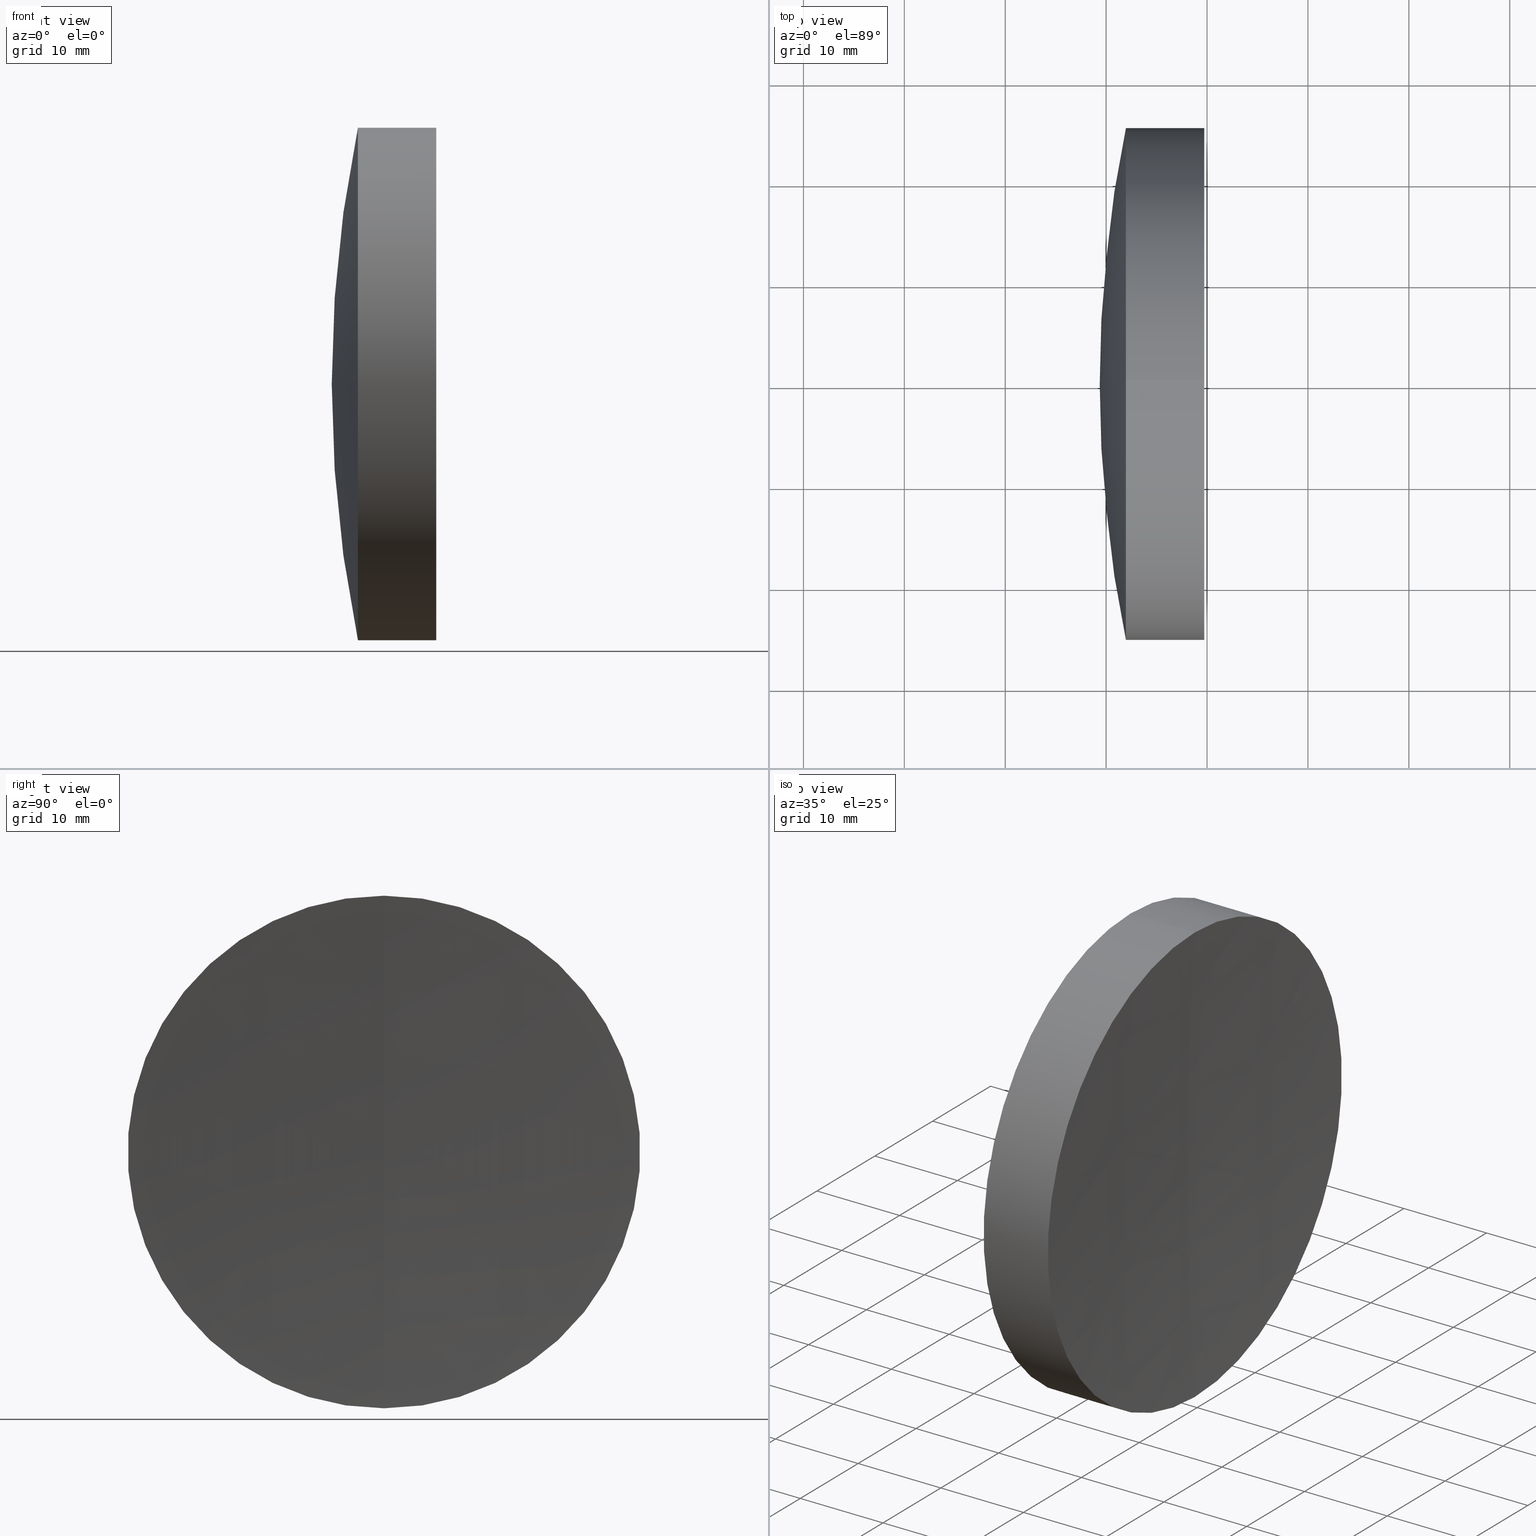
[diagram: canonical four-view strip — front | top / right | iso, engineering-drawing reading convention]
A machine part, canonical four-view strip (front | top / right | iso — engineering-drawing reading convention). The complete STEP part file that produces these views, byte-faithful:
ISO-10303-21;
HEADER;
FILE_DESCRIPTION (( 'STEP AP214' ),
    '1' );
FILE_NAME ('145183.STEP',
    '2019-06-13T02:10:40',
    ( 'user' ),
    ( '΢���й�' ),
    'SwSTEP 2.0',
    'SolidWorks 2016',
    '' );
FILE_SCHEMA (( 'AUTOMOTIVE_DESIGN' ));
ENDSEC;

DATA;
#1 = VERTEX_POINT ( 'NONE', #91 ) ;
#2 = AXIS2_PLACEMENT_3D ( 'NONE', #18, #268, #275 ) ;
#3 = EDGE_CURVE ( 'NONE', #1, #245, #28, .T. ) ;
#4 = ORIENTED_EDGE ( 'NONE', *, *, #334, .T. ) ;
#5 = PRODUCT_DEFINITION_SHAPE ( 'NONE', 'NONE',  #333 ) ;
#6 = ADVANCED_FACE ( 'NONE', ( #19 ), #63, .T. ) ;
#7 = VERTEX_POINT ( 'NONE', #144 ) ;
#8 = CARTESIAN_POINT ( 'NONE',  ( 44.36476896124682400, 0.0000000000000000000, 3.080629158308288600E-014 ) ) ;
#9 = STYLED_ITEM ( 'NONE', ( #330 ), #191 ) ;
#10 = EDGE_CURVE ( 'NONE', #320, #245, #237, .T. ) ;
#11 =( NAMED_UNIT ( * ) SI_UNIT ( $, .STERADIAN. ) SOLID_ANGLE_UNIT ( ) );
#12 = PRESENTATION_LAYER_ASSIGNMENT (  '', '', ( #9 ) ) ;
#13 = DIRECTION ( 'NONE',  ( 0.0000000000000000000, 0.0000000000000000000, 1.000000000000000000 ) ) ;
#14 = DIRECTION ( 'NONE',  ( 0.0000000000000000000, -1.000000000000000000, 0.0000000000000000000 ) ) ;
#15 = EDGE_LOOP ( 'NONE', ( #171, #279, #315 ) ) ;
#16 = DIRECTION ( 'NONE',  ( 0.0000000000000000000, -1.000000000000000000, -1.224646799147353200E-016 ) ) ;
#17 = AXIS2_PLACEMENT_3D ( 'NONE', #41, #253, #246 ) ;
#18 = CARTESIAN_POINT ( 'NONE',  ( -0.8160621761658039000, 0.0000000000000000000, 0.0000000000000000000 ) ) ;
#19 = FACE_OUTER_BOUND ( 'NONE', #71, .T. ) ;
#20 = EDGE_CURVE ( 'NONE', #305, #276, #72, .T. ) ;
#21 = CYLINDRICAL_SURFACE ( 'NONE', #2, 25.40000000000002700 ) ;
#22 = APPLICATION_CONTEXT ( 'automotive_design' ) ;
#23 = EDGE_LOOP ( 'NONE', ( #260, #145, #252, #112 ) ) ;
#24 = SURFACE_STYLE_USAGE ( .BOTH. , #247 ) ;
#25 = EDGE_LOOP ( 'NONE', ( #52, #337, #224 ) ) ;
#26 = DIRECTION ( 'NONE',  ( 0.0000000000000000000, 1.224646799147353000E-016, -1.000000000000000000 ) ) ;
#27 = CARTESIAN_POINT ( 'NONE',  ( -0.5519199926577972300, 0.0000000000000000000, 0.0000000000000000000 ) ) ;
#28 = CIRCLE ( 'NONE', #168, 161.5000000000000000 ) ;
#29 = DIRECTION ( 'NONE',  ( 0.0000000000000000000, -1.000000000000000000, -1.224646799147353200E-016 ) ) ;
#30 = AXIS2_PLACEMENT_3D ( 'NONE', #27, #250, #140 ) ;
#31 = EDGE_CURVE ( 'NONE', #1, #320, #167, .T. ) ;
#32 = DIRECTION ( 'NONE',  ( -1.000000000000000000, -0.0000000000000000000, -0.0000000000000000000 ) ) ;
#33 = EDGE_CURVE ( 'NONE', #60, #251, #267, .T. ) ;
#34 = ORIENTED_EDGE ( 'NONE', *, *, #50, .T. ) ;
#35 = DIRECTION ( 'NONE',  ( 0.0000000000000000000, 0.0000000000000000000, 1.000000000000000000 ) ) ;
#36 = ORIENTED_EDGE ( 'NONE', *, *, #261, .T. ) ;
#37 = DIRECTION ( 'NONE',  ( 0.0000000000000000000, 0.0000000000000000000, -1.000000000000000000 ) ) ;
#38 = VECTOR ( 'NONE', #32, 1000.000000000000000 ) ;
#39 = DIRECTION ( 'NONE',  ( 0.0000000000000000000, 0.0000000000000000000, 1.000000000000000000 ) ) ;
#40 = CARTESIAN_POINT ( 'NONE',  ( 203.8548626975037100, 0.0000000000000000000, 0.0000000000000000000 ) ) ;
#41 = CARTESIAN_POINT ( 'NONE',  ( 324.9647689612468200, 0.0000000000000000000, 2.974097145224427900E-014 ) ) ;
#42 = EDGE_CURVE ( 'NONE', #251, #60, #295, .T. ) ;
#43 = PRODUCT_CONTEXT ( 'NONE', #291, 'mechanical' ) ;
#44 = CARTESIAN_POINT ( 'NONE',  ( 203.8548626975037100, 3.110602869834281200E-015, -25.40000000000003400 ) ) ;
#45 = VERTEX_POINT ( 'NONE', #99 ) ;
#46 = CARTESIAN_POINT ( 'NONE',  ( -0.8160621761658039000, 0.0000000000000000000, 0.0000000000000000000 ) ) ;
#47 = AXIS2_PLACEMENT_3D ( 'NONE', #101, #238, #129 ) ;
#48 = SPHERICAL_SURFACE ( 'NONE', #90, 125.6000000000000200 ) ;
#49 = DIRECTION ( 'NONE',  ( 0.0000000000000000000, -1.000000000000000000, -1.224646799147353200E-016 ) ) ;
#50 = EDGE_CURVE ( 'NONE', #7, #251, #271, .T. ) ;
#51 = CARTESIAN_POINT ( 'NONE',  ( 201.9598910091916100, 0.0000000000000000000, 0.0000000000000000000 ) ) ;
#52 = ORIENTED_EDGE ( 'NONE', *, *, #270, .F. ) ;
#53 =( GEOMETRIC_REPRESENTATION_CONTEXT ( 3 ) GLOBAL_UNCERTAINTY_ASSIGNED_CONTEXT ( ( #199 ) ) GLOBAL_UNIT_ASSIGNED_CONTEXT ( ( #100, #210, #222 ) ) REPRESENTATION_CONTEXT ( 'NONE', 'WORKASPACE' ) );
#54 = ORIENTED_EDGE ( 'NONE', *, *, #110, .F. ) ;
#55 = EDGE_CURVE ( 'NONE', #328, #304, #243, .T. ) ;
#56 = FACE_OUTER_BOUND ( 'NONE', #86, .T. ) ;
#57 = CARTESIAN_POINT ( 'NONE',  ( -0.8160621761658039000, 3.110602869834280400E-015, -25.40000000000002700 ) ) ;
#58 = CARTESIAN_POINT ( 'NONE',  ( 209.7231034970280100, 0.0000000000000000000, -25.40000000000006300 ) ) ;
#59 = AXIS2_PLACEMENT_3D ( 'NONE', #283, #76, #347 ) ;
#60 = VERTEX_POINT ( 'NONE', #96 ) ;
#61 = CARTESIAN_POINT ( 'NONE',  ( 44.36476896124682400, 0.0000000000000000000, 3.080629158308288600E-014 ) ) ;
#62 = MANIFOLD_SOLID_BREP ( '��ת2', #104 ) ;
#63 = CYLINDRICAL_SURFACE ( 'NONE', #67, 25.40000000000001300 ) ;
#64 = ADVANCED_FACE ( 'NONE', ( #299 ), #280, .T. ) ;
#65 = UNCERTAINTY_MEASURE_WITH_UNIT (LENGTH_MEASURE( 1.000000000000000100E-005 ), #121, 'distance_accuracy_value', 'NONE');
#66 = EDGE_LOOP ( 'NONE', ( #266, #36, #190 ) ) ;
#67 = AXIS2_PLACEMENT_3D ( 'NONE', #206, #278, #39 ) ;
#68 = SURFACE_STYLE_USAGE ( .BOTH. , #296 ) ;
#69 = DIRECTION ( 'NONE',  ( 0.0000000000000000000, 0.0000000000000000000, 1.000000000000000000 ) ) ;
#70 = CARTESIAN_POINT ( 'NONE',  ( 585.1147689612468000, 0.0000000000000000000, 0.0000000000000000000 ) ) ;
#71 = EDGE_LOOP ( 'NONE', ( #85, #148, #83, #233 ) ) ;
#72 = CIRCLE ( 'NONE', #153, 25.40000000000001300 ) ;
#73 = DIRECTION ( 'NONE',  ( 0.0000000000000000000, 1.000000000000000000, -0.0000000000000000000 ) ) ;
#74 = AXIS2_PLACEMENT_3D ( 'NONE', #124, #301, #150 ) ;
#75 = ORIENTED_EDGE ( 'NONE', *, *, #3, .F. ) ;
#76 = DIRECTION ( 'NONE',  ( -1.000000000000000000, -0.0000000000000000000, -0.0000000000000000000 ) ) ;
#77 = SPHERICAL_SURFACE ( 'NONE', #155, 161.5000000000000000 ) ;
#78 = CIRCLE ( 'NONE', #221, 376.2500000000000000 ) ;
#79 = PRESENTATION_LAYER_ASSIGNMENT (  '', '', ( #131 ) ) ;
#80 = PRESENTATION_STYLE_ASSIGNMENT (( #24 ) ) ;
#81 = EDGE_CURVE ( 'NONE', #276, #251, #229, .T. ) ;
#82 = CIRCLE ( 'NONE', #231, 125.6000000000000200 ) ;
#83 = ORIENTED_EDGE ( 'NONE', *, *, #81, .T. ) ;
#84 = APPLICATION_PROTOCOL_DEFINITION ( 'draft international standard', 'automotive_design', 1998, #291 ) ;
#85 = ORIENTED_EDGE ( 'NONE', *, *, #342, .F. ) ;
#86 = EDGE_LOOP ( 'NONE', ( #290, #34, #298 ) ) ;
#87 = CARTESIAN_POINT ( 'NONE',  ( 585.1147689612468000, 0.0000000000000000000, 0.0000000000000000000 ) ) ;
#88 = CIRCLE ( 'NONE', #209, 25.40000000000001300 ) ;
#89 = DIRECTION ( 'NONE',  ( -1.000000000000000000, -0.0000000000000000000, -0.0000000000000000000 ) ) ;
#90 = AXIS2_PLACEMENT_3D ( 'NONE', #313, #339, #37 ) ;
#91 = CARTESIAN_POINT ( 'NONE',  ( 205.8647689612468200, 0.0000000000000000000, 4.069531448619776800E-014 ) ) ;
#92 = PRODUCT_DEFINITION_CONTEXT ( 'detailed design', #22, 'design' ) ;
#93 = ORIENTED_EDGE ( 'NONE', *, *, #81, .F. ) ;
#94 = EDGE_LOOP ( 'NONE', ( #226, #257, #241 ) ) ;
#95 =( GEOMETRIC_REPRESENTATION_CONTEXT ( 3 ) GLOBAL_UNCERTAINTY_ASSIGNED_CONTEXT ( ( #205 ) ) GLOBAL_UNIT_ASSIGNED_CONTEXT ( ( #341, #175, #11 ) ) REPRESENTATION_CONTEXT ( 'NONE', 'WORKASPACE' ) );
#96 = CARTESIAN_POINT ( 'NONE',  ( 203.8548626975037100, 0.0000000000000000000, -25.40000000000001300 ) ) ;
#97 = MECHANICAL_DESIGN_GEOMETRIC_PRESENTATION_REPRESENTATION (  '', ( #9 ), #322 ) ;
#98 = CARTESIAN_POINT ( 'NONE',  ( -0.5519199926577972300, 3.110602869834278400E-015, -25.40000000000001300 ) ) ;
#99 = CARTESIAN_POINT ( 'NONE',  ( 199.3647689612468000, 0.0000000000000000000, 2.205018955359889700E-014 ) ) ;
#100 =( LENGTH_UNIT ( ) NAMED_UNIT ( * ) SI_UNIT ( .MILLI., .METRE. ) );
#101 = CARTESIAN_POINT ( 'NONE',  ( 585.1147689612468000, 0.0000000000000000000, 0.0000000000000000000 ) ) ;
#102 = FACE_OUTER_BOUND ( 'NONE', #201, .T. ) ;
#103 = MECHANICAL_DESIGN_GEOMETRIC_PRESENTATION_REPRESENTATION (  '', ( #131 ), #95 ) ;
#104 = CLOSED_SHELL ( 'NONE', ( #331, #336, #108, #239, #195, #6 ) ) ;
#105 = CARTESIAN_POINT ( 'NONE',  ( 209.7231034970280100, -3.110602869834284800E-015, 25.40000000000006300 ) ) ;
#106 = COLOUR_RGB ( '',1.000000000000000000, 1.000000000000000000, 1.000000000000000000 ) ;
#107 = CARTESIAN_POINT ( 'NONE',  ( 203.8548626975037100, 0.0000000000000000000, 0.0000000000000000000 ) ) ;
#108 = ADVANCED_FACE ( 'NONE', ( #56 ), #218, .F. ) ;
#109 = AXIS2_PLACEMENT_3D ( 'NONE', #46, #314, #35 ) ;
#110 = EDGE_CURVE ( 'NONE', #276, #305, #88, .T. ) ;
#111 = LINE ( 'NONE', #98, #38 ) ;
#112 = ORIENTED_EDGE ( 'NONE', *, *, #126, .F. ) ;
#113 = DIRECTION ( 'NONE',  ( 0.0000000000000000000, 1.000000000000000000, 0.0000000000000000000 ) ) ;
#114 = DIRECTION ( 'NONE',  ( 0.0000000000000000000, 1.000000000000000000, 0.0000000000000000000 ) ) ;
#115 = SURFACE_STYLE_FILL_AREA ( #183 ) ;
#116 = AXIS2_PLACEMENT_3D ( 'NONE', #107, #181, #236 ) ;
#117 = CARTESIAN_POINT ( 'NONE',  ( 209.7231034970280100, 0.0000000000000000000, 0.0000000000000000000 ) ) ;
#118 = ADVANCED_FACE ( 'NONE', ( #346 ), #48, .T. ) ;
#119 = SURFACE_STYLE_FILL_AREA ( #132 ) ;
#120 = ORIENTED_EDGE ( 'NONE', *, *, #342, .T. ) ;
#121 =( LENGTH_UNIT ( ) NAMED_UNIT ( * ) SI_UNIT ( .MILLI., .METRE. ) );
#122 = ORIENTED_EDGE ( 'NONE', *, *, #110, .T. ) ;
#123 = AXIS2_PLACEMENT_3D ( 'NONE', #40, #89, #258 ) ;
#124 = CARTESIAN_POINT ( 'NONE',  ( 44.36476896124682400, 0.0000000000000000000, 3.080629158308288600E-014 ) ) ;
#125 = MANIFOLD_SOLID_BREP ( '��ת1', #176 ) ;
#126 = EDGE_CURVE ( 'NONE', #245, #304, #208, .T. ) ;
#127 = CARTESIAN_POINT ( 'NONE',  ( 203.8548626975037100, 0.0000000000000000000, 25.40000000000003100 ) ) ;
#128 = DIRECTION ( 'NONE',  ( 0.0000000000000000000, -1.224646799147353200E-016, 1.000000000000000000 ) ) ;
#129 = DIRECTION ( 'NONE',  ( 0.0000000000000000000, 0.0000000000000000000, -1.000000000000000000 ) ) ;
#130 = CIRCLE ( 'NONE', #123, 25.40000000000003100 ) ;
#131 = STYLED_ITEM ( 'NONE', ( #284 ), #125 ) ;
#132 = FILL_AREA_STYLE ('',( #151 ) ) ;
#133 = DIRECTION ( 'NONE',  ( -1.000000000000000000, -0.0000000000000000000, -0.0000000000000000000 ) ) ;
#134 = DIRECTION ( 'NONE',  ( 0.0000000000000000000, 1.224646799147353500E-016, -1.000000000000000000 ) ) ;
#135 = AXIS2_PLACEMENT_3D ( 'NONE', #303, #228, #13 ) ;
#136 = FACE_OUTER_BOUND ( 'NONE', #23, .T. ) ;
#137 = FACE_OUTER_BOUND ( 'NONE', #321, .T. ) ;
#138 = CARTESIAN_POINT ( 'NONE',  ( 201.9598910091916100, -3.110602869834281600E-015, 25.40000000000007000 ) ) ;
#139 = ORIENTED_EDGE ( 'NONE', *, *, #42, .F. ) ;
#140 = DIRECTION ( 'NONE',  ( 0.0000000000000000000, 0.0000000000000000000, 1.000000000000000000 ) ) ;
#141 = AXIS2_PLACEMENT_3D ( 'NONE', #61, #286, #162 ) ;
#142 = LINE ( 'NONE', #57, #154 ) ;
#143 = DIRECTION ( 'NONE',  ( -1.000000000000000000, -0.0000000000000000000, -0.0000000000000000000 ) ) ;
#144 = CARTESIAN_POINT ( 'NONE',  ( 205.8647689612468500, 0.0000000000000000000, 2.091726867996800700E-014 ) ) ;
#145 = ORIENTED_EDGE ( 'NONE', *, *, #161, .T. ) ;
#146 = CARTESIAN_POINT ( 'NONE',  ( 44.36476896124682400, 0.0000000000000000000, 3.080629158308288600E-014 ) ) ;
#147 = ADVANCED_FACE ( 'NONE', ( #136 ), #340, .T. ) ;
#148 = ORIENTED_EDGE ( 'NONE', *, *, #20, .T. ) ;
#149 = AXIS2_PLACEMENT_3D ( 'NONE', #70, #174, #285 ) ;
#150 = DIRECTION ( 'NONE',  ( 0.0000000000000000000, 0.0000000000000000000, -1.000000000000000000 ) ) ;
#151 = FILL_AREA_STYLE_COLOUR ( '', #256 ) ;
#152 = DIRECTION ( 'NONE',  ( -1.000000000000000000, -0.0000000000000000000, -0.0000000000000000000 ) ) ;
#153 = AXIS2_PLACEMENT_3D ( 'NONE', #117, #143, #207 ) ;
#154 = VECTOR ( 'NONE', #282, 1000.000000000000000 ) ;
#155 = AXIS2_PLACEMENT_3D ( 'NONE', #8, #113, #202 ) ;
#156 = ORIENTED_EDGE ( 'NONE', *, *, #261, .F. ) ;
#157 = DIRECTION ( 'NONE',  ( 0.0000000000000000000, 0.0000000000000000000, 1.000000000000000000 ) ) ;
#158 = COLOUR_RGB ( '',1.000000000000000000, 1.000000000000000000, 1.000000000000000000 ) ;
#159 = FILL_AREA_STYLE ('',( #312 ) ) ;
#160 = PRESENTATION_LAYER_ASSIGNMENT (  '', '', ( #186 ) ) ;
#161 = EDGE_CURVE ( 'NONE', #320, #328, #142, .T. ) ;
#162 = DIRECTION ( 'NONE',  ( 0.0000000000000000000, 0.0000000000000000000, 1.000000000000000000 ) ) ;
#163 = DIRECTION ( 'NONE',  ( 0.0000000000000000000, 0.0000000000000000000, 1.000000000000000000 ) ) ;
#164 = SPHERICAL_SURFACE ( 'NONE', #47, 376.2500000000000000 ) ;
#165 =( LENGTH_UNIT ( ) NAMED_UNIT ( * ) SI_UNIT ( .MILLI., .METRE. ) );
#166 = AXIS2_PLACEMENT_3D ( 'NONE', #338, #49, #134 ) ;
#167 = CIRCLE ( 'NONE', #203, 161.5000000000000000 ) ;
#168 = AXIS2_PLACEMENT_3D ( 'NONE', #146, #14, #169 ) ;
#169 = DIRECTION ( 'NONE',  ( 0.0000000000000000000, 0.0000000000000000000, -1.000000000000000000 ) ) ;
#170 = AXIS2_PLACEMENT_3D ( 'NONE', #51, #220, #180 ) ;
#171 = ORIENTED_EDGE ( 'NONE', *, *, #50, .F. ) ;
#172 = ORIENTED_EDGE ( 'NONE', *, *, #270, .T. ) ;
#173 = CARTESIAN_POINT ( 'NONE',  ( 209.7231034970280100, 0.0000000000000000000, 0.0000000000000000000 ) ) ;
#174 = DIRECTION ( 'NONE',  ( -0.0000000000000000000, -1.000000000000000000, -0.0000000000000000000 ) ) ;
#175 =( NAMED_UNIT ( * ) PLANE_ANGLE_UNIT ( ) SI_UNIT ( $, .RADIAN. ) );
#176 = CLOSED_SHELL ( 'NONE', ( #235, #147, #118, #343, #230, #64 ) ) ;
#177 =( GEOMETRIC_REPRESENTATION_CONTEXT ( 3 ) GLOBAL_UNCERTAINTY_ASSIGNED_CONTEXT ( ( #318 ) ) GLOBAL_UNIT_ASSIGNED_CONTEXT ( ( #165, #244, #277 ) ) REPRESENTATION_CONTEXT ( 'NONE', 'WORKASPACE' ) );
#178 = EDGE_LOOP ( 'NONE', ( #310, #287, #216, #211 ) ) ;
#179 = CARTESIAN_POINT ( 'NONE',  ( -0.5519199926577972300, 0.0000000000000000000, 25.40000000000001300 ) ) ;
#180 = DIRECTION ( 'NONE',  ( 0.0000000000000000000, 0.0000000000000000000, 1.000000000000000000 ) ) ;
#181 = DIRECTION ( 'NONE',  ( -1.000000000000000000, -0.0000000000000000000, -0.0000000000000000000 ) ) ;
#182 = CARTESIAN_POINT ( 'NONE',  ( 203.8548626975037100, -3.110602869834278400E-015, 25.40000000000004100 ) ) ;
#183 = FILL_AREA_STYLE ('',( #311 ) ) ;
#184 = DIRECTION ( 'NONE',  ( -0.0000000000000000000, 1.000000000000000000, 1.224646799147353200E-016 ) ) ;
#185 =( NAMED_UNIT ( * ) PLANE_ANGLE_UNIT ( ) SI_UNIT ( $, .RADIAN. ) );
#186 = STYLED_ITEM ( 'NONE', ( #80 ), #62 ) ;
#187 = EDGE_CURVE ( 'NONE', #7, #60, #307, .T. ) ;
#188 = CARTESIAN_POINT ( 'NONE',  ( 324.9647689612468200, 0.0000000000000000000, 2.974097145224427900E-014 ) ) ;
#189 = ORIENTED_EDGE ( 'NONE', *, *, #198, .F. ) ;
#190 = ORIENTED_EDGE ( 'NONE', *, *, #323, .F. ) ;
#191 = ADVANCED_BREP_SHAPE_REPRESENTATION ( '145183', ( #125, #62, #302 ), #53 ) ;
#192 = DIRECTION ( 'NONE',  ( 0.0000000000000000000, 0.0000000000000000000, -1.000000000000000000 ) ) ;
#193 = AXIS2_PLACEMENT_3D ( 'NONE', #288, #152, #306 ) ;
#194 = SPHERICAL_SURFACE ( 'NONE', #17, 125.6000000000000200 ) ;
#195 = ADVANCED_FACE ( 'NONE', ( #254 ), #332, .F. ) ;
#196 = CARTESIAN_POINT ( 'NONE',  ( 585.1147689612468000, 0.0000000000000000000, 0.0000000000000000000 ) ) ;
#197 = MECHANICAL_DESIGN_GEOMETRIC_PRESENTATION_REPRESENTATION (  '', ( #186 ), #177 ) ;
#198 = EDGE_CURVE ( 'NONE', #245, #320, #130, .T. ) ;
#199 = UNCERTAINTY_MEASURE_WITH_UNIT (LENGTH_MEASURE( 1.000000000000000100E-005 ), #100, 'distance_accuracy_value', 'NONE');
#200 = FACE_OUTER_BOUND ( 'NONE', #327, .T. ) ;
#201 = EDGE_LOOP ( 'NONE', ( #75, #309, #189 ) ) ;
#202 = DIRECTION ( 'NONE',  ( 0.0000000000000000000, 0.0000000000000000000, 1.000000000000000000 ) ) ;
#203 = AXIS2_PLACEMENT_3D ( 'NONE', #345, #184, #128 ) ;
#204 = VECTOR ( 'NONE', #264, 1000.000000000000000 ) ;
#205 = UNCERTAINTY_MEASURE_WITH_UNIT (LENGTH_MEASURE( 1.000000000000000100E-005 ), #341, 'distance_accuracy_value', 'NONE');
#206 = CARTESIAN_POINT ( 'NONE',  ( -0.5519199926577972300, 0.0000000000000000000, 0.0000000000000000000 ) ) ;
#207 = DIRECTION ( 'NONE',  ( 0.0000000000000000000, 0.0000000000000000000, 1.000000000000000000 ) ) ;
#208 = LINE ( 'NONE', #272, #248 ) ;
#209 = AXIS2_PLACEMENT_3D ( 'NONE', #173, #133, #319 ) ;
#210 =( NAMED_UNIT ( * ) PLANE_ANGLE_UNIT ( ) SI_UNIT ( $, .RADIAN. ) );
#211 = ORIENTED_EDGE ( 'NONE', *, *, #55, .F. ) ;
#212 = DIRECTION ( 'NONE',  ( 1.000000000000000000, 0.0000000000000000000, 0.0000000000000000000 ) ) ;
#213 = CARTESIAN_POINT ( 'NONE',  ( 201.9598910091916100, 0.0000000000000000000, -25.40000000000003800 ) ) ;
#214 = DIRECTION ( 'NONE',  ( -0.0000000000000000000, -1.000000000000000000, -0.0000000000000000000 ) ) ;
#215 = AXIS2_PLACEMENT_3D ( 'NONE', #259, #289, #163 ) ;
#216 = ORIENTED_EDGE ( 'NONE', *, *, #126, .T. ) ;
#217 = CARTESIAN_POINT ( 'NONE',  ( 44.36476896124682400, 0.0000000000000000000, 3.080629158308288600E-014 ) ) ;
#218 = SPHERICAL_SURFACE ( 'NONE', #74, 161.5000000000000300 ) ;
#219 = PRODUCT ( '145183', '145183', '', ( #43 ) ) ;
#220 = DIRECTION ( 'NONE',  ( -1.000000000000000000, -0.0000000000000000000, -0.0000000000000000000 ) ) ;
#221 = AXIS2_PLACEMENT_3D ( 'NONE', #196, #73, #265 ) ;
#222 =( NAMED_UNIT ( * ) SI_UNIT ( $, .STERADIAN. ) SOLID_ANGLE_UNIT ( ) );
#223 = CIRCLE ( 'NONE', #215, 125.6000000000000200 ) ;
#224 = ORIENTED_EDGE ( 'NONE', *, *, #308, .T. ) ;
#225 = PRODUCT_DEFINITION_FORMATION_WITH_SPECIFIED_SOURCE ( '�κ�', '', #219, .NOT_KNOWN. ) ;
#226 = ORIENTED_EDGE ( 'NONE', *, *, #31, .F. ) ;
#227 = AXIS2_PLACEMENT_3D ( 'NONE', #335, #114, #69 ) ;
#228 = DIRECTION ( 'NONE',  ( -1.000000000000000000, -0.0000000000000000000, -0.0000000000000000000 ) ) ;
#229 = LINE ( 'NONE', #179, #204 ) ;
#230 = ADVANCED_FACE ( 'NONE', ( #262 ), #21, .T. ) ;
#231 = AXIS2_PLACEMENT_3D ( 'NONE', #188, #29, #26 ) ;
#232 = SPHERICAL_SURFACE ( 'NONE', #240, 161.5000000000000300 ) ;
#233 = ORIENTED_EDGE ( 'NONE', *, *, #33, .F. ) ;
#234 = APPLICATION_PROTOCOL_DEFINITION ( 'draft international standard', 'automotive_design', 1998, #22 ) ;
#235 = ADVANCED_FACE ( 'NONE', ( #102 ), #77, .T. ) ;
#236 = DIRECTION ( 'NONE',  ( 0.0000000000000000000, 0.0000000000000000000, 1.000000000000000000 ) ) ;
#237 = CIRCLE ( 'NONE', #135, 25.40000000000003100 ) ;
#238 = DIRECTION ( 'NONE',  ( -0.0000000000000000000, -1.000000000000000000, -0.0000000000000000000 ) ) ;
#239 = ADVANCED_FACE ( 'NONE', ( #300 ), #232, .F. ) ;
#240 = AXIS2_PLACEMENT_3D ( 'NONE', #217, #214, #192 ) ;
#241 = ORIENTED_EDGE ( 'NONE', *, *, #10, .F. ) ;
#242 = CARTESIAN_POINT ( 'NONE',  ( 0.0000000000000000000, 0.0000000000000000000, 0.0000000000000000000 ) ) ;
#243 = CIRCLE ( 'NONE', #170, 25.40000000000002700 ) ;
#244 =( NAMED_UNIT ( * ) PLANE_ANGLE_UNIT ( ) SI_UNIT ( $, .RADIAN. ) );
#245 = VERTEX_POINT ( 'NONE', #127 ) ;
#246 = DIRECTION ( 'NONE',  ( 0.0000000000000000000, 0.0000000000000000000, -1.000000000000000000 ) ) ;
#247 = SURFACE_SIDE_STYLE ('',( #329 ) ) ;
#248 = VECTOR ( 'NONE', #325, 1000.000000000000000 ) ;
#249 = CIRCLE ( 'NONE', #59, 25.40000000000002700 ) ;
#250 = DIRECTION ( 'NONE',  ( -1.000000000000000000, -0.0000000000000000000, -0.0000000000000000000 ) ) ;
#251 = VERTEX_POINT ( 'NONE', #182 ) ;
#252 = ORIENTED_EDGE ( 'NONE', *, *, #334, .F. ) ;
#253 = DIRECTION ( 'NONE',  ( -0.0000000000000000000, -1.000000000000000000, -0.0000000000000000000 ) ) ;
#254 = FACE_OUTER_BOUND ( 'NONE', #25, .T. ) ;
#255 = SHAPE_DEFINITION_REPRESENTATION ( #5, #191 ) ;
#256 = COLOUR_RGB ( '',1.000000000000000000, 1.000000000000000000, 1.000000000000000000 ) ;
#257 = ORIENTED_EDGE ( 'NONE', *, *, #3, .T. ) ;
#258 = DIRECTION ( 'NONE',  ( 0.0000000000000000000, 0.0000000000000000000, 1.000000000000000000 ) ) ;
#259 = CARTESIAN_POINT ( 'NONE',  ( 324.9647689612468200, 0.0000000000000000000, 2.974097145224427900E-014 ) ) ;
#260 = ORIENTED_EDGE ( 'NONE', *, *, #198, .T. ) ;
#261 = EDGE_CURVE ( 'NONE', #304, #45, #82, .T. ) ;
#262 = FACE_OUTER_BOUND ( 'NONE', #178, .T. ) ;
#263 = FACE_OUTER_BOUND ( 'NONE', #292, .T. ) ;
#264 = DIRECTION ( 'NONE',  ( -1.000000000000000000, -0.0000000000000000000, -0.0000000000000000000 ) ) ;
#265 = DIRECTION ( 'NONE',  ( 0.0000000000000000000, 0.0000000000000000000, 1.000000000000000000 ) ) ;
#266 = ORIENTED_EDGE ( 'NONE', *, *, #55, .T. ) ;
#267 = CIRCLE ( 'NONE', #116, 25.40000000000001300 ) ;
#268 = DIRECTION ( 'NONE',  ( -1.000000000000000000, -0.0000000000000000000, -0.0000000000000000000 ) ) ;
#269 = CARTESIAN_POINT ( 'NONE',  ( 208.8647689612468500, 0.0000000000000000000, -2.303866790895958100E-014 ) ) ;
#270 = EDGE_CURVE ( 'NONE', #276, #297, #344, .T. ) ;
#271 = CIRCLE ( 'NONE', #166, 161.5000000000000300 ) ;
#272 = CARTESIAN_POINT ( 'NONE',  ( -0.8160621761658039000, 0.0000000000000000000, 25.40000000000002700 ) ) ;
#273 = ORIENTED_EDGE ( 'NONE', *, *, #323, .T. ) ;
#274 = SURFACE_SIDE_STYLE ('',( #115 ) ) ;
#275 = DIRECTION ( 'NONE',  ( 0.0000000000000000000, 0.0000000000000000000, 1.000000000000000000 ) ) ;
#276 = VERTEX_POINT ( 'NONE', #105 ) ;
#277 =( NAMED_UNIT ( * ) SI_UNIT ( $, .STERADIAN. ) SOLID_ANGLE_UNIT ( ) );
#278 = DIRECTION ( 'NONE',  ( -1.000000000000000000, -0.0000000000000000000, -0.0000000000000000000 ) ) ;
#279 = ORIENTED_EDGE ( 'NONE', *, *, #187, .T. ) ;
#280 = SPHERICAL_SURFACE ( 'NONE', #227, 161.5000000000000000 ) ;
#281 = ORIENTED_EDGE ( 'NONE', *, *, #308, .F. ) ;
#282 = DIRECTION ( 'NONE',  ( -1.000000000000000000, -0.0000000000000000000, -0.0000000000000000000 ) ) ;
#283 = CARTESIAN_POINT ( 'NONE',  ( 201.9598910091916100, 0.0000000000000000000, 0.0000000000000000000 ) ) ;
#284 = PRESENTATION_STYLE_ASSIGNMENT (( #324 ) ) ;
#285 = DIRECTION ( 'NONE',  ( 0.0000000000000000000, 0.0000000000000000000, -1.000000000000000000 ) ) ;
#286 = DIRECTION ( 'NONE',  ( 0.0000000000000000000, 1.000000000000000000, -0.0000000000000000000 ) ) ;
#287 = ORIENTED_EDGE ( 'NONE', *, *, #10, .T. ) ;
#288 = CARTESIAN_POINT ( 'NONE',  ( 203.8548626975037100, 0.0000000000000000000, 0.0000000000000000000 ) ) ;
#289 = DIRECTION ( 'NONE',  ( 0.0000000000000000000, 1.000000000000000000, -0.0000000000000000000 ) ) ;
#290 = ORIENTED_EDGE ( 'NONE', *, *, #187, .F. ) ;
#291 = APPLICATION_CONTEXT ( 'automotive_design' ) ;
#292 = EDGE_LOOP ( 'NONE', ( #122, #120, #139, #93 ) ) ;
#293 = CYLINDRICAL_SURFACE ( 'NONE', #30, 25.40000000000001300 ) ;
#294 =( NAMED_UNIT ( * ) SI_UNIT ( $, .STERADIAN. ) SOLID_ANGLE_UNIT ( ) );
#295 = CIRCLE ( 'NONE', #193, 25.40000000000001300 ) ;
#296 = SURFACE_SIDE_STYLE ('',( #119 ) ) ;
#297 = VERTEX_POINT ( 'NONE', #269 ) ;
#298 = ORIENTED_EDGE ( 'NONE', *, *, #42, .T. ) ;
#299 = FACE_OUTER_BOUND ( 'NONE', #94, .T. ) ;
#300 = FACE_OUTER_BOUND ( 'NONE', #15, .T. ) ;
#301 = DIRECTION ( 'NONE',  ( -0.0000000000000000000, -1.000000000000000000, -0.0000000000000000000 ) ) ;
#302 = AXIS2_PLACEMENT_3D ( 'NONE', #242, #157, #212 ) ;
#303 = CARTESIAN_POINT ( 'NONE',  ( 203.8548626975037100, 0.0000000000000000000, 0.0000000000000000000 ) ) ;
#304 = VERTEX_POINT ( 'NONE', #138 ) ;
#305 = VERTEX_POINT ( 'NONE', #58 ) ;
#306 = DIRECTION ( 'NONE',  ( 0.0000000000000000000, 0.0000000000000000000, 1.000000000000000000 ) ) ;
#307 = CIRCLE ( 'NONE', #141, 161.5000000000000300 ) ;
#308 = EDGE_CURVE ( 'NONE', #305, #297, #78, .T. ) ;
#309 = ORIENTED_EDGE ( 'NONE', *, *, #31, .T. ) ;
#310 = ORIENTED_EDGE ( 'NONE', *, *, #161, .F. ) ;
#311 = FILL_AREA_STYLE_COLOUR ( '', #106 ) ;
#312 = FILL_AREA_STYLE_COLOUR ( '', #158 ) ;
#313 = CARTESIAN_POINT ( 'NONE',  ( 324.9647689612468200, 0.0000000000000000000, 2.974097145224427900E-014 ) ) ;
#314 = DIRECTION ( 'NONE',  ( -1.000000000000000000, -0.0000000000000000000, -0.0000000000000000000 ) ) ;
#315 = ORIENTED_EDGE ( 'NONE', *, *, #33, .T. ) ;
#316 = DIRECTION ( 'NONE',  ( 0.0000000000000000000, 1.224646799147353200E-016, -1.000000000000000000 ) ) ;
#317 = PRODUCT_RELATED_PRODUCT_CATEGORY ( 'part', '', ( #219 ) ) ;
#318 = UNCERTAINTY_MEASURE_WITH_UNIT (LENGTH_MEASURE( 1.000000000000000100E-005 ), #165, 'distance_accuracy_value', 'NONE');
#319 = DIRECTION ( 'NONE',  ( 0.0000000000000000000, 0.0000000000000000000, 1.000000000000000000 ) ) ;
#320 = VERTEX_POINT ( 'NONE', #44 ) ;
#321 = EDGE_LOOP ( 'NONE', ( #54, #172, #281 ) ) ;
#322 =( GEOMETRIC_REPRESENTATION_CONTEXT ( 3 ) GLOBAL_UNCERTAINTY_ASSIGNED_CONTEXT ( ( #65 ) ) GLOBAL_UNIT_ASSIGNED_CONTEXT ( ( #121, #185, #294 ) ) REPRESENTATION_CONTEXT ( 'NONE', 'WORKASPACE' ) );
#323 = EDGE_CURVE ( 'NONE', #328, #45, #223, .T. ) ;
#324 = SURFACE_STYLE_USAGE ( .BOTH. , #274 ) ;
#325 = DIRECTION ( 'NONE',  ( -1.000000000000000000, -0.0000000000000000000, -0.0000000000000000000 ) ) ;
#326 = AXIS2_PLACEMENT_3D ( 'NONE', #87, #16, #316 ) ;
#327 = EDGE_LOOP ( 'NONE', ( #156, #4, #273 ) ) ;
#328 = VERTEX_POINT ( 'NONE', #213 ) ;
#329 = SURFACE_STYLE_FILL_AREA ( #159 ) ;
#330 = PRESENTATION_STYLE_ASSIGNMENT (( #68 ) ) ;
#331 = ADVANCED_FACE ( 'NONE', ( #263 ), #293, .T. ) ;
#332 = SPHERICAL_SURFACE ( 'NONE', #149, 376.2500000000000000 ) ;
#333 = PRODUCT_DEFINITION ( 'δ֪', '', #225, #92 ) ;
#334 = EDGE_CURVE ( 'NONE', #304, #328, #249, .T. ) ;
#335 = CARTESIAN_POINT ( 'NONE',  ( 44.36476896124682400, 0.0000000000000000000, 3.080629158308288600E-014 ) ) ;
#336 = ADVANCED_FACE ( 'NONE', ( #137 ), #164, .F. ) ;
#337 = ORIENTED_EDGE ( 'NONE', *, *, #20, .F. ) ;
#338 = CARTESIAN_POINT ( 'NONE',  ( 44.36476896124682400, 0.0000000000000000000, 3.080629158308288600E-014 ) ) ;
#339 = DIRECTION ( 'NONE',  ( -0.0000000000000000000, -1.000000000000000000, -0.0000000000000000000 ) ) ;
#340 = CYLINDRICAL_SURFACE ( 'NONE', #109, 25.40000000000002700 ) ;
#341 =( LENGTH_UNIT ( ) NAMED_UNIT ( * ) SI_UNIT ( .MILLI., .METRE. ) );
#342 = EDGE_CURVE ( 'NONE', #305, #60, #111, .T. ) ;
#343 = ADVANCED_FACE ( 'NONE', ( #200 ), #194, .T. ) ;
#344 = CIRCLE ( 'NONE', #326, 376.2500000000000000 ) ;
#345 = CARTESIAN_POINT ( 'NONE',  ( 44.36476896124682400, 0.0000000000000000000, 3.080629158308288600E-014 ) ) ;
#346 = FACE_OUTER_BOUND ( 'NONE', #66, .T. ) ;
#347 = DIRECTION ( 'NONE',  ( 0.0000000000000000000, 0.0000000000000000000, 1.000000000000000000 ) ) ;
ENDSEC;
END-ISO-10303-21;
